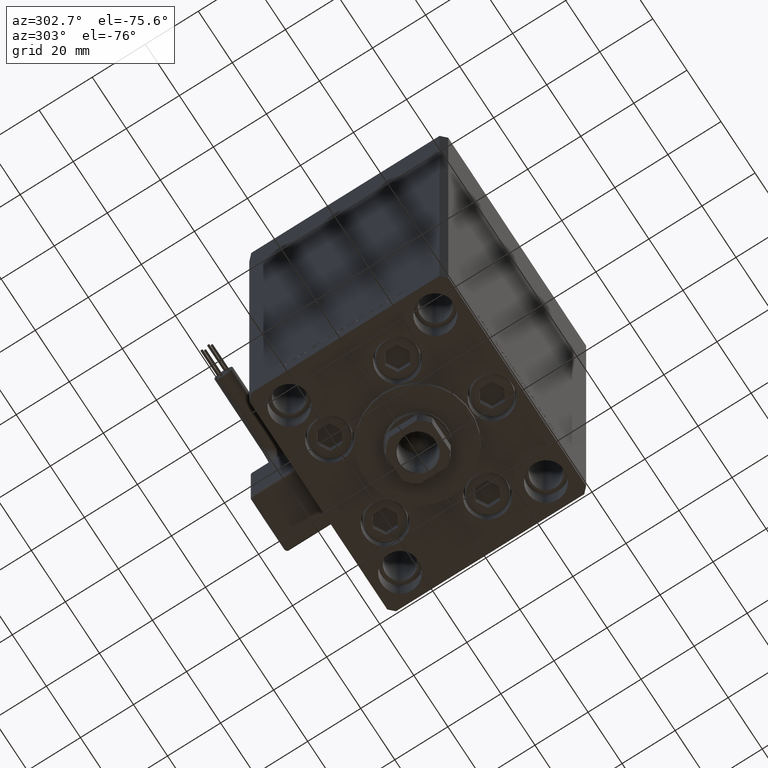
[diagram: clean part render]
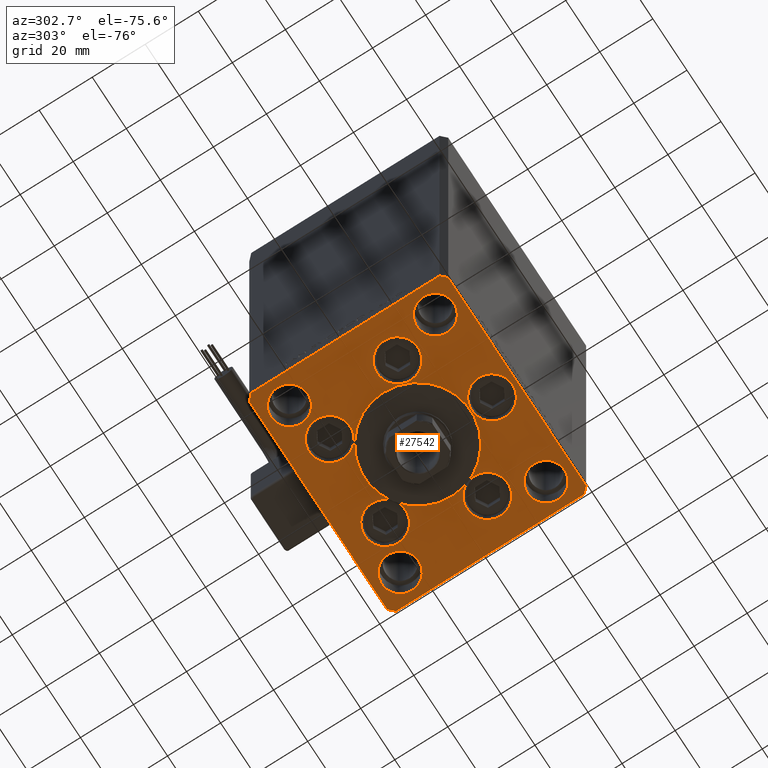
[diagram: same view with one face highlighted and labeled with its STEP entity id]
A machine part, auxiliary view. The second image highlights one B-rep face of the part: STEP entity #27542.
In plain terms, the highlighted planar face has unit normal (0, 0, -1).
Its self-contained STEP definition (entity closure, byte-faithful):
#9 = CIRCLE ( 'NONE', #9311, 6.999999999999999112 ) ;
#559 = EDGE_LOOP ( 'NONE', ( #6176, #18944 ) ) ;
#748 = CARTESIAN_POINT ( 'NONE',  ( 26.39865316429777664, -9.333333333333330373, 0.000000000000000000 ) ) ;
#1565 = CARTESIAN_POINT ( 'NONE',  ( 0.000000000000000000, 0.000000000000000000, 0.000000000000000000 ) ) ;
#2237 = EDGE_LOOP ( 'NONE', ( #33801, #12923 ) ) ;
#3304 = ORIENTED_EDGE ( 'NONE', *, *, #47044, .F. ) ;
#4036 = LINE ( 'NONE', #39944, #13518 ) ;
#4149 = AXIS2_PLACEMENT_3D ( 'NONE', #26232, #22276, #51060 ) ;
#4457 = DIRECTION ( 'NONE',  ( 0.000000000000000000, 0.000000000000000000, 1.000000000000000000 ) ) ;
#5142 = AXIS2_PLACEMENT_3D ( 'NONE', #748, #4457, #12906 ) ;
#5529 = FACE_BOUND ( 'NONE', #46805, .T. ) ;
#5754 = DIRECTION ( 'NONE',  ( -1.000000000000000000, -4.283267841918041508E-16, 0.000000000000000000 ) ) ;
#5963 = EDGE_CURVE ( 'NONE', #38764, #14073, #10788, .T. ) ;
#6077 = CARTESIAN_POINT ( 'NONE',  ( 39.50000000000000000, -27.50000000000000355, 0.000000000000000000 ) ) ;
#6167 = CARTESIAN_POINT ( 'NONE',  ( -16.32291334290544071, 22.74999999999999289, 0.000000000000000000 ) ) ;
#6176 = ORIENTED_EDGE ( 'NONE', *, *, #34684, .F. ) ;
#7229 = CARTESIAN_POINT ( 'NONE',  ( 0.000000000000000000, -28.00000000000000000, 0.000000000000000000 ) ) ;
#7473 = DIRECTION ( 'NONE',  ( -0.7071067811865524577, 0.7071067811865426878, 0.000000000000000000 ) ) ;
#7553 = CARTESIAN_POINT ( 'NONE',  ( -32.50000000000000000, 27.50000000000000711, 0.000000000000000000 ) ) ;
#7648 = ORIENTED_EDGE ( 'NONE', *, *, #33139, .T. ) ;
#7703 = DIRECTION ( 'NONE',  ( 1.000000000000000000, 0.000000000000000000, 0.000000000000000000 ) ) ;
#7749 = DIRECTION ( 'NONE',  ( 1.000000000000000000, 0.000000000000000000, 0.000000000000000000 ) ) ;
#7991 = LINE ( 'NONE', #43642, #29590 ) ;
#8163 = ORIENTED_EDGE ( 'NONE', *, *, #43457, .F. ) ;
#8490 = EDGE_LOOP ( 'NONE', ( #46007, #24890 ) ) ;
#8611 = EDGE_CURVE ( 'NONE', #51890, #12849, #19339, .T. ) ;
#8636 = DIRECTION ( 'NONE',  ( 1.000000000000000000, 0.000000000000000000, 0.000000000000000000 ) ) ;
#8699 = ORIENTED_EDGE ( 'NONE', *, *, #49138, .T. ) ;
#8721 = FACE_BOUND ( 'NONE', #559, .T. ) ;
#8973 = FACE_BOUND ( 'NONE', #23220, .T. ) ;
#9169 = AXIS2_PLACEMENT_3D ( 'NONE', #1565, #40912, #17677 ) ;
#9227 = CARTESIAN_POINT ( 'NONE',  ( -40.50000000000000711, -37.50000000000003553, 0.000000000000000000 ) ) ;
#9311 = AXIS2_PLACEMENT_3D ( 'NONE', #47828, #48611, #7703 ) ;
#9744 = FACE_OUTER_BOUND ( 'NONE', #13093, .T. ) ;
#9860 = ORIENTED_EDGE ( 'NONE', *, *, #13016, .T. ) ;
#10153 = CIRCLE ( 'NONE', #40498, 7.750000000000000000 ) ;
#10257 = VERTEX_POINT ( 'NONE', #20294 ) ;
#10306 = DIRECTION ( 'NONE',  ( 9.773090005503134168E-17, -1.000000000000000000, 0.000000000000000000 ) ) ;
#10788 = CIRCLE ( 'NONE', #25098, 7.750000000000000000 ) ;
#10814 = EDGE_CURVE ( 'NONE', #31616, #41666, #9, .T. ) ;
#10883 = LINE ( 'NONE', #26966, #28677 ) ;
#10976 = AXIS2_PLACEMENT_3D ( 'NONE', #34563, #46719, #11331 ) ;
#11140 = AXIS2_PLACEMENT_3D ( 'NONE', #17567, #33650, #37619 ) ;
#11232 = CARTESIAN_POINT ( 'NONE',  ( 34.14865316429777664, -9.333333333333330373, 0.000000000000000000 ) ) ;
#11331 = DIRECTION ( 'NONE',  ( 1.000000000000000000, 0.000000000000000000, 0.000000000000000000 ) ) ;
#11363 = CARTESIAN_POINT ( 'NONE',  ( -16.32291334290544071, 22.74999999999999289, 0.000000000000000000 ) ) ;
#11372 = CARTESIAN_POINT ( 'NONE',  ( 26.39865316429777664, -9.333333333333330373, 0.000000000000000000 ) ) ;
#11723 = DIRECTION ( 'NONE',  ( 1.000000000000000000, 0.000000000000000000, 0.000000000000000000 ) ) ;
#12079 = CARTESIAN_POINT ( 'NONE',  ( -8.572913342905440715, 22.74999999999999289, 0.000000000000000000 ) ) ;
#12316 = CARTESIAN_POINT ( 'NONE',  ( -7.750000000000000000, -28.00000000000000000, 0.000000000000000000 ) ) ;
#12455 = DIRECTION ( 'NONE',  ( 1.000000000000000000, 0.000000000000000000, 0.000000000000000000 ) ) ;
#12526 = EDGE_CURVE ( 'NONE', #12849, #51890, #35491, .T. ) ;
#12634 = ORIENTED_EDGE ( 'NONE', *, *, #44335, .T. ) ;
#12728 = CIRCLE ( 'NONE', #48193, 20.00000000000000000 ) ;
#12849 = VERTEX_POINT ( 'NONE', #17020 ) ;
#12875 = CIRCLE ( 'NONE', #14574, 6.999999999999999112 ) ;
#12906 = DIRECTION ( 'NONE',  ( 1.000000000000000000, 0.000000000000000000, 0.000000000000000000 ) ) ;
#12923 = ORIENTED_EDGE ( 'NONE', *, *, #48693, .F. ) ;
#12950 = LINE ( 'NONE', #9227, #43310 ) ;
#13016 = EDGE_CURVE ( 'NONE', #25028, #39743, #7991, .T. ) ;
#13093 = EDGE_LOOP ( 'NONE', ( #22326, #26488, #40586, #7648, #9860, #8699, #46419, #12634 ) ) ;
#13105 = CARTESIAN_POINT ( 'NONE',  ( -25.50000000000000355, -27.50000000000000355, 0.000000000000000000 ) ) ;
#13518 = VECTOR ( 'NONE', #31499, 1000.000000000000114 ) ;
#13715 = DIRECTION ( 'NONE',  ( 1.000000000000000000, 0.000000000000000000, 0.000000000000000000 ) ) ;
#14012 = LINE ( 'NONE', #46212, #46409 ) ;
#14073 = VERTEX_POINT ( 'NONE', #42535 ) ;
#14356 = DIRECTION ( 'NONE',  ( 0.000000000000000000, 0.000000000000000000, 1.000000000000000000 ) ) ;
#14444 = AXIS2_PLACEMENT_3D ( 'NONE', #20513, #32641, #8636 ) ;
#14574 = AXIS2_PLACEMENT_3D ( 'NONE', #49399, #16668, #12455 ) ;
#14880 = CARTESIAN_POINT ( 'NONE',  ( -40.50000000000000711, -37.50000000000003553, 0.000000000000000000 ) ) ;
#14917 = DIRECTION ( 'NONE',  ( 9.773090005503145261E-17, 1.000000000000000000, 0.000000000000000000 ) ) ;
#15044 = EDGE_CURVE ( 'NONE', #30836, #18115, #25678, .T. ) ;
#15087 = CARTESIAN_POINT ( 'NONE',  ( 25.50000000000000355, -27.50000000000000355, 0.000000000000000000 ) ) ;
#15336 = DIRECTION ( 'NONE',  ( 0.000000000000000000, 0.000000000000000000, 1.000000000000000000 ) ) ;
#15491 = VERTEX_POINT ( 'NONE', #26640 ) ;
#15708 = AXIS2_PLACEMENT_3D ( 'NONE', #23052, #51844, #7749 ) ;
#15829 = EDGE_CURVE ( 'NONE', #24719, #47185, #17287, .T. ) ;
#16668 = DIRECTION ( 'NONE',  ( 0.000000000000000000, 0.000000000000000000, 1.000000000000000000 ) ) ;
#16861 = VERTEX_POINT ( 'NONE', #33465 ) ;
#16895 = CARTESIAN_POINT ( 'NONE',  ( -40.50000000000000000, 37.49999999999997158, 0.000000000000000000 ) ) ;
#16912 = CARTESIAN_POINT ( 'NONE',  ( -39.50000000000000000, -27.50000000000000355, 0.000000000000000000 ) ) ;
#16985 = AXIS2_PLACEMENT_3D ( 'NONE', #50826, #26508, #42618 ) ;
#17020 = CARTESIAN_POINT ( 'NONE',  ( 8.572913342905442491, 22.74999999999999289, 0.000000000000000000 ) ) ;
#17085 = CIRCLE ( 'NONE', #43238, 7.750000000000000000 ) ;
#17219 = EDGE_CURVE ( 'NONE', #15491, #33870, #38419, .T. ) ;
#17287 = CIRCLE ( 'NONE', #18112, 7.750000000000000000 ) ;
#17363 = AXIS2_PLACEMENT_3D ( 'NONE', #45457, #33558, #25896 ) ;
#17567 = CARTESIAN_POINT ( 'NONE',  ( -26.39865316429777664, -9.333333333333330373, 0.000000000000000000 ) ) ;
#17609 = CARTESIAN_POINT ( 'NONE',  ( -25.50000000000000355, 27.50000000000000711, 0.000000000000000000 ) ) ;
#17677 = DIRECTION ( 'NONE',  ( 1.000000000000000000, 0.000000000000000000, 0.000000000000000000 ) ) ;
#18038 = EDGE_CURVE ( 'NONE', #49343, #43301, #33396, .T. ) ;
#18112 = AXIS2_PLACEMENT_3D ( 'NONE', #25271, #42423, #25538 ) ;
#18115 = VERTEX_POINT ( 'NONE', #25128 ) ;
#18218 = CARTESIAN_POINT ( 'NONE',  ( -42.50000000000000711, 35.50000000000000000, 0.000000000000000000 ) ) ;
#18318 = VERTEX_POINT ( 'NONE', #16895 ) ;
#18438 = CARTESIAN_POINT ( 'NONE',  ( 40.50000000000000711, 37.50000000000000711, 0.000000000000000000 ) ) ;
#18439 = DIRECTION ( 'NONE',  ( 0.000000000000000000, 0.000000000000000000, 1.000000000000000000 ) ) ;
#18944 = ORIENTED_EDGE ( 'NONE', *, *, #31871, .F. ) ;
#19127 = VERTEX_POINT ( 'NONE', #30989 ) ;
#19339 = CIRCLE ( 'NONE', #4149, 7.750000000000000000 ) ;
#19643 = CARTESIAN_POINT ( 'NONE',  ( -32.50000000000000000, -27.50000000000000355, 0.000000000000000000 ) ) ;
#20294 = CARTESIAN_POINT ( 'NONE',  ( 7.750000000000000000, -28.00000000000000000, 0.000000000000000000 ) ) ;
#20295 = AXIS2_PLACEMENT_3D ( 'NONE', #11372, #15336, #39351 ) ;
#20509 = ORIENTED_EDGE ( 'NONE', *, *, #10814, .F. ) ;
#20513 = CARTESIAN_POINT ( 'NONE',  ( 16.32291334290544071, 22.74999999999999289, 0.000000000000000000 ) ) ;
#20611 = CARTESIAN_POINT ( 'NONE',  ( 0.000000000000000000, -6.938893903907228378E-15, 0.000000000000000000 ) ) ;
#20848 = PLANE ( 'NONE',  #9169 ) ;
#21109 = FACE_BOUND ( 'NONE', #2237, .T. ) ;
#22276 = DIRECTION ( 'NONE',  ( 0.000000000000000000, 0.000000000000000000, 1.000000000000000000 ) ) ;
#22326 = ORIENTED_EDGE ( 'NONE', *, *, #42485, .T. ) ;
#22576 = DIRECTION ( 'NONE',  ( 1.000000000000000000, 0.000000000000000000, 0.000000000000000000 ) ) ;
#23052 = CARTESIAN_POINT ( 'NONE',  ( -32.50000000000000000, -27.50000000000000355, 0.000000000000000000 ) ) ;
#23220 = EDGE_LOOP ( 'NONE', ( #46996, #38421 ) ) ;
#23237 = EDGE_CURVE ( 'NONE', #41666, #31616, #29259, .T. ) ;
#23357 = CARTESIAN_POINT ( 'NONE',  ( 0.000000000000000000, -28.00000000000000000, 0.000000000000000000 ) ) ;
#24028 = AXIS2_PLACEMENT_3D ( 'NONE', #7553, #30545, #26561 ) ;
#24097 = ORIENTED_EDGE ( 'NONE', *, *, #41490, .F. ) ;
#24719 = VERTEX_POINT ( 'NONE', #49489 ) ;
#24805 = FACE_BOUND ( 'NONE', #31264, .T. ) ;
#24890 = ORIENTED_EDGE ( 'NONE', *, *, #39276, .F. ) ;
#25028 = VERTEX_POINT ( 'NONE', #33249 ) ;
#25098 = AXIS2_PLACEMENT_3D ( 'NONE', #6167, #14356, #46561 ) ;
#25128 = CARTESIAN_POINT ( 'NONE',  ( -39.50000000000000000, 27.50000000000000711, 0.000000000000000000 ) ) ;
#25271 = CARTESIAN_POINT ( 'NONE',  ( -26.39865316429777664, -9.333333333333330373, 0.000000000000000000 ) ) ;
#25538 = DIRECTION ( 'NONE',  ( 1.000000000000000000, 0.000000000000000000, 0.000000000000000000 ) ) ;
#25678 = CIRCLE ( 'NONE', #24028, 6.999999999999999112 ) ;
#25806 = LINE ( 'NONE', #41920, #46630 ) ;
#25896 = DIRECTION ( 'NONE',  ( 1.000000000000000000, 0.000000000000000000, 0.000000000000000000 ) ) ;
#25993 = EDGE_LOOP ( 'NONE', ( #49406, #3304 ) ) ;
#26232 = CARTESIAN_POINT ( 'NONE',  ( 16.32291334290544071, 22.74999999999999289, 0.000000000000000000 ) ) ;
#26261 = CARTESIAN_POINT ( 'NONE',  ( 42.50000000000000711, -35.49999999999992895, 0.000000000000000000 ) ) ;
#26418 = CIRCLE ( 'NONE', #51735, 7.750000000000000000 ) ;
#26466 = CARTESIAN_POINT ( 'NONE',  ( 25.50000000000000355, 27.49999999999999645, 0.000000000000000000 ) ) ;
#26488 = ORIENTED_EDGE ( 'NONE', *, *, #51580, .T. ) ;
#26508 = DIRECTION ( 'NONE',  ( 0.000000000000000000, 0.000000000000000000, 1.000000000000000000 ) ) ;
#26561 = DIRECTION ( 'NONE',  ( 1.000000000000000000, 0.000000000000000000, 0.000000000000000000 ) ) ;
#26640 = CARTESIAN_POINT ( 'NONE',  ( -20.00000000000000000, -6.938893903907228378E-15, 0.000000000000000000 ) ) ;
#26966 = CARTESIAN_POINT ( 'NONE',  ( -42.50000000000000000, -35.50000000000004263, 0.000000000000000000 ) ) ;
#26971 = VERTEX_POINT ( 'NONE', #14880 ) ;
#27065 = ORIENTED_EDGE ( 'NONE', *, *, #40098, .F. ) ;
#27066 = CIRCLE ( 'NONE', #16985, 6.999999999999999112 ) ;
#27542 = ADVANCED_FACE ( 'NONE', ( #37210, #41690, #8973, #8721, #28770, #37728, #21109, #45918, #24805, #5529, #9744 ), #20848, .T. ) ;
#27555 = ORIENTED_EDGE ( 'NONE', *, *, #18038, .F. ) ;
#28677 = VECTOR ( 'NONE', #28801, 1000.000000000000000 ) ;
#28770 = FACE_BOUND ( 'NONE', #33946, .T. ) ;
#28801 = DIRECTION ( 'NONE',  ( 0.7071067811865487940, -0.7071067811865463515, 0.000000000000000000 ) ) ;
#29259 = CIRCLE ( 'NONE', #30920, 6.999999999999999112 ) ;
#29590 = VECTOR ( 'NONE', #7473, 1000.000000000000000 ) ;
#30100 = DIRECTION ( 'NONE',  ( -0.7071067811865536790, -0.7071067811865414665, 0.000000000000000000 ) ) ;
#30156 = EDGE_CURVE ( 'NONE', #42949, #16861, #4036, .T. ) ;
#30501 = LINE ( 'NONE', #26261, #41304 ) ;
#30545 = DIRECTION ( 'NONE',  ( 0.000000000000000000, 0.000000000000000000, 1.000000000000000000 ) ) ;
#30744 = CARTESIAN_POINT ( 'NONE',  ( 39.50000000000000000, 27.49999999999999645, 0.000000000000000000 ) ) ;
#30836 = VERTEX_POINT ( 'NONE', #17609 ) ;
#30920 = AXIS2_PLACEMENT_3D ( 'NONE', #42197, #18439, #13715 ) ;
#30989 = CARTESIAN_POINT ( 'NONE',  ( -42.50000000000000711, 35.50000000000000000, 0.000000000000000000 ) ) ;
#31264 = EDGE_LOOP ( 'NONE', ( #27555, #32768 ) ) ;
#31499 = DIRECTION ( 'NONE',  ( 0.7071067811865474617, 0.7071067811865474617, 0.000000000000000000 ) ) ;
#31616 = VERTEX_POINT ( 'NONE', #15087 ) ;
#31727 = ORIENTED_EDGE ( 'NONE', *, *, #50485, .F. ) ;
#31871 = EDGE_CURVE ( 'NONE', #44087, #50379, #46455, .T. ) ;
#32233 = DIRECTION ( 'NONE',  ( 1.000000000000000000, 0.000000000000000000, 0.000000000000000000 ) ) ;
#32641 = DIRECTION ( 'NONE',  ( 0.000000000000000000, 0.000000000000000000, 1.000000000000000000 ) ) ;
#32768 = ORIENTED_EDGE ( 'NONE', *, *, #40952, .F. ) ;
#32903 = VERTEX_POINT ( 'NONE', #12316 ) ;
#33139 = EDGE_CURVE ( 'NONE', #16861, #25028, #30501, .T. ) ;
#33249 = CARTESIAN_POINT ( 'NONE',  ( 42.50000000000001421, 35.50000000000002132, 0.000000000000000000 ) ) ;
#33396 = CIRCLE ( 'NONE', #15708, 6.999999999999999112 ) ;
#33409 = VERTEX_POINT ( 'NONE', #26466 ) ;
#33465 = CARTESIAN_POINT ( 'NONE',  ( 42.50000000000000711, -35.49999999999992895, 0.000000000000000000 ) ) ;
#33558 = DIRECTION ( 'NONE',  ( 0.000000000000000000, 0.000000000000000000, 1.000000000000000000 ) ) ;
#33628 = CARTESIAN_POINT ( 'NONE',  ( 24.07291334290544071, 22.74999999999999289, 0.000000000000000000 ) ) ;
#33650 = DIRECTION ( 'NONE',  ( 0.000000000000000000, 0.000000000000000000, 1.000000000000000000 ) ) ;
#33725 = CIRCLE ( 'NONE', #10976, 6.999999999999999112 ) ;
#33801 = ORIENTED_EDGE ( 'NONE', *, *, #41995, .F. ) ;
#33870 = VERTEX_POINT ( 'NONE', #34718 ) ;
#33946 = EDGE_LOOP ( 'NONE', ( #27065, #31727 ) ) ;
#34437 = CARTESIAN_POINT ( 'NONE',  ( -34.14865316429777664, -9.333333333333328596, 0.000000000000000000 ) ) ;
#34563 = CARTESIAN_POINT ( 'NONE',  ( -32.50000000000000000, 27.50000000000000711, 0.000000000000000000 ) ) ;
#34684 = EDGE_CURVE ( 'NONE', #50379, #44087, #48929, .T. ) ;
#34718 = CARTESIAN_POINT ( 'NONE',  ( 20.00000000000000000, -4.489600305612522259E-15, 0.000000000000000000 ) ) ;
#35202 = DIRECTION ( 'NONE',  ( 1.000000000000000000, 0.000000000000000000, 0.000000000000000000 ) ) ;
#35491 = CIRCLE ( 'NONE', #14444, 7.750000000000000000 ) ;
#35696 = ORIENTED_EDGE ( 'NONE', *, *, #15044, .F. ) ;
#35732 = DIRECTION ( 'NONE',  ( 0.000000000000000000, 0.000000000000000000, 1.000000000000000000 ) ) ;
#36702 = DIRECTION ( 'NONE',  ( 0.000000000000000000, 0.000000000000000000, 1.000000000000000000 ) ) ;
#37132 = VERTEX_POINT ( 'NONE', #30744 ) ;
#37210 = FACE_BOUND ( 'NONE', #51163, .T. ) ;
#37467 = DIRECTION ( 'NONE',  ( 1.000000000000000000, 1.370645709413773283E-15, 0.000000000000000000 ) ) ;
#37619 = DIRECTION ( 'NONE',  ( 1.000000000000000000, 0.000000000000000000, 0.000000000000000000 ) ) ;
#37728 = FACE_BOUND ( 'NONE', #25993, .T. ) ;
#38419 = CIRCLE ( 'NONE', #17363, 20.00000000000000000 ) ;
#38421 = ORIENTED_EDGE ( 'NONE', *, *, #12526, .F. ) ;
#38630 = DIRECTION ( 'NONE',  ( 1.000000000000000000, 0.000000000000000000, 0.000000000000000000 ) ) ;
#38764 = VERTEX_POINT ( 'NONE', #12079 ) ;
#39276 = EDGE_CURVE ( 'NONE', #14073, #38764, #17085, .T. ) ;
#39351 = DIRECTION ( 'NONE',  ( 1.000000000000000000, 0.000000000000000000, 0.000000000000000000 ) ) ;
#39399 = ORIENTED_EDGE ( 'NONE', *, *, #17219, .F. ) ;
#39701 = VECTOR ( 'NONE', #10306, 1000.000000000000000 ) ;
#39743 = VERTEX_POINT ( 'NONE', #18438 ) ;
#39944 = CARTESIAN_POINT ( 'NONE',  ( 40.50000000000001421, -37.49999999999992184, 0.000000000000000000 ) ) ;
#40098 = EDGE_CURVE ( 'NONE', #10257, #32903, #10153, .T. ) ;
#40498 = AXIS2_PLACEMENT_3D ( 'NONE', #7229, #51066, #35202 ) ;
#40586 = ORIENTED_EDGE ( 'NONE', *, *, #30156, .T. ) ;
#40912 = DIRECTION ( 'NONE',  ( -0.000000000000000000, 0.000000000000000000, 1.000000000000000000 ) ) ;
#40952 = EDGE_CURVE ( 'NONE', #43301, #49343, #48978, .T. ) ;
#41304 = VECTOR ( 'NONE', #14917, 1000.000000000000000 ) ;
#41464 = CARTESIAN_POINT ( 'NONE',  ( -42.50000000000000000, -35.50000000000004263, 0.000000000000000000 ) ) ;
#41490 = EDGE_CURVE ( 'NONE', #33870, #15491, #12728, .T. ) ;
#41666 = VERTEX_POINT ( 'NONE', #6077 ) ;
#41690 = FACE_BOUND ( 'NONE', #8490, .T. ) ;
#41920 = CARTESIAN_POINT ( 'NONE',  ( 40.50000000000000711, 37.50000000000000711, 0.000000000000000000 ) ) ;
#41980 = LINE ( 'NONE', #18218, #39701 ) ;
#41995 = EDGE_CURVE ( 'NONE', #37132, #33409, #27066, .T. ) ;
#42197 = CARTESIAN_POINT ( 'NONE',  ( 32.50000000000000000, -27.50000000000000355, 0.000000000000000000 ) ) ;
#42333 = CIRCLE ( 'NONE', #11140, 7.750000000000000000 ) ;
#42423 = DIRECTION ( 'NONE',  ( 0.000000000000000000, 0.000000000000000000, 1.000000000000000000 ) ) ;
#42485 = EDGE_CURVE ( 'NONE', #42516, #26971, #10883, .T. ) ;
#42516 = VERTEX_POINT ( 'NONE', #41464 ) ;
#42535 = CARTESIAN_POINT ( 'NONE',  ( -24.07291334290544071, 22.74999999999999289, 0.000000000000000000 ) ) ;
#42585 = EDGE_CURVE ( 'NONE', #18318, #19127, #14012, .T. ) ;
#42618 = DIRECTION ( 'NONE',  ( 1.000000000000000000, 0.000000000000000000, 0.000000000000000000 ) ) ;
#42903 = DIRECTION ( 'NONE',  ( 0.000000000000000000, 0.000000000000000000, 1.000000000000000000 ) ) ;
#42949 = VERTEX_POINT ( 'NONE', #46667 ) ;
#43238 = AXIS2_PLACEMENT_3D ( 'NONE', #11363, #46290, #38630 ) ;
#43301 = VERTEX_POINT ( 'NONE', #16912 ) ;
#43310 = VECTOR ( 'NONE', #37467, 1000.000000000000000 ) ;
#43457 = EDGE_CURVE ( 'NONE', #18115, #30836, #33725, .T. ) ;
#43642 = CARTESIAN_POINT ( 'NONE',  ( 42.50000000000001421, 35.50000000000002132, 0.000000000000000000 ) ) ;
#44087 = VERTEX_POINT ( 'NONE', #49507 ) ;
#44335 = EDGE_CURVE ( 'NONE', #19127, #42516, #41980, .T. ) ;
#44544 = EDGE_LOOP ( 'NONE', ( #35696, #8163 ) ) ;
#44855 = ORIENTED_EDGE ( 'NONE', *, *, #23237, .F. ) ;
#45457 = CARTESIAN_POINT ( 'NONE',  ( 0.000000000000000000, -6.938893903907228378E-15, 0.000000000000000000 ) ) ;
#45918 = FACE_BOUND ( 'NONE', #44544, .T. ) ;
#46007 = ORIENTED_EDGE ( 'NONE', *, *, #5963, .F. ) ;
#46212 = CARTESIAN_POINT ( 'NONE',  ( -40.50000000000000000, 37.49999999999997158, 0.000000000000000000 ) ) ;
#46290 = DIRECTION ( 'NONE',  ( 0.000000000000000000, 0.000000000000000000, 1.000000000000000000 ) ) ;
#46409 = VECTOR ( 'NONE', #30100, 1000.000000000000000 ) ;
#46419 = ORIENTED_EDGE ( 'NONE', *, *, #42585, .T. ) ;
#46455 = CIRCLE ( 'NONE', #5142, 7.750000000000000000 ) ;
#46456 = AXIS2_PLACEMENT_3D ( 'NONE', #19643, #35732, #11723 ) ;
#46561 = DIRECTION ( 'NONE',  ( 1.000000000000000000, 0.000000000000000000, 0.000000000000000000 ) ) ;
#46630 = VECTOR ( 'NONE', #5754, 1000.000000000000000 ) ;
#46667 = CARTESIAN_POINT ( 'NONE',  ( 40.50000000000001421, -37.49999999999992184, 0.000000000000000000 ) ) ;
#46719 = DIRECTION ( 'NONE',  ( 0.000000000000000000, 0.000000000000000000, 1.000000000000000000 ) ) ;
#46805 = EDGE_LOOP ( 'NONE', ( #44855, #20509 ) ) ;
#46996 = ORIENTED_EDGE ( 'NONE', *, *, #8611, .F. ) ;
#47044 = EDGE_CURVE ( 'NONE', #47185, #24719, #42333, .T. ) ;
#47185 = VERTEX_POINT ( 'NONE', #34437 ) ;
#47828 = CARTESIAN_POINT ( 'NONE',  ( 32.50000000000000000, -27.50000000000000355, 0.000000000000000000 ) ) ;
#48193 = AXIS2_PLACEMENT_3D ( 'NONE', #20611, #36702, #32233 ) ;
#48611 = DIRECTION ( 'NONE',  ( 0.000000000000000000, 0.000000000000000000, 1.000000000000000000 ) ) ;
#48693 = EDGE_CURVE ( 'NONE', #33409, #37132, #12875, .T. ) ;
#48929 = CIRCLE ( 'NONE', #20295, 7.750000000000000000 ) ;
#48978 = CIRCLE ( 'NONE', #46456, 6.999999999999999112 ) ;
#49138 = EDGE_CURVE ( 'NONE', #39743, #18318, #25806, .T. ) ;
#49343 = VERTEX_POINT ( 'NONE', #13105 ) ;
#49399 = CARTESIAN_POINT ( 'NONE',  ( 32.50000000000000000, 27.49999999999999645, 0.000000000000000000 ) ) ;
#49406 = ORIENTED_EDGE ( 'NONE', *, *, #15829, .F. ) ;
#49489 = CARTESIAN_POINT ( 'NONE',  ( -18.64865316429777664, -9.333333333333330373, 0.000000000000000000 ) ) ;
#49507 = CARTESIAN_POINT ( 'NONE',  ( 18.64865316429777664, -9.333333333333328596, 0.000000000000000000 ) ) ;
#50379 = VERTEX_POINT ( 'NONE', #11232 ) ;
#50485 = EDGE_CURVE ( 'NONE', #32903, #10257, #26418, .T. ) ;
#50826 = CARTESIAN_POINT ( 'NONE',  ( 32.50000000000000000, 27.49999999999999645, 0.000000000000000000 ) ) ;
#51060 = DIRECTION ( 'NONE',  ( 1.000000000000000000, 0.000000000000000000, 0.000000000000000000 ) ) ;
#51066 = DIRECTION ( 'NONE',  ( 0.000000000000000000, 0.000000000000000000, 1.000000000000000000 ) ) ;
#51163 = EDGE_LOOP ( 'NONE', ( #39399, #24097 ) ) ;
#51580 = EDGE_CURVE ( 'NONE', #26971, #42949, #12950, .T. ) ;
#51735 = AXIS2_PLACEMENT_3D ( 'NONE', #23357, #42903, #22576 ) ;
#51844 = DIRECTION ( 'NONE',  ( 0.000000000000000000, 0.000000000000000000, 1.000000000000000000 ) ) ;
#51890 = VERTEX_POINT ( 'NONE', #33628 ) ;